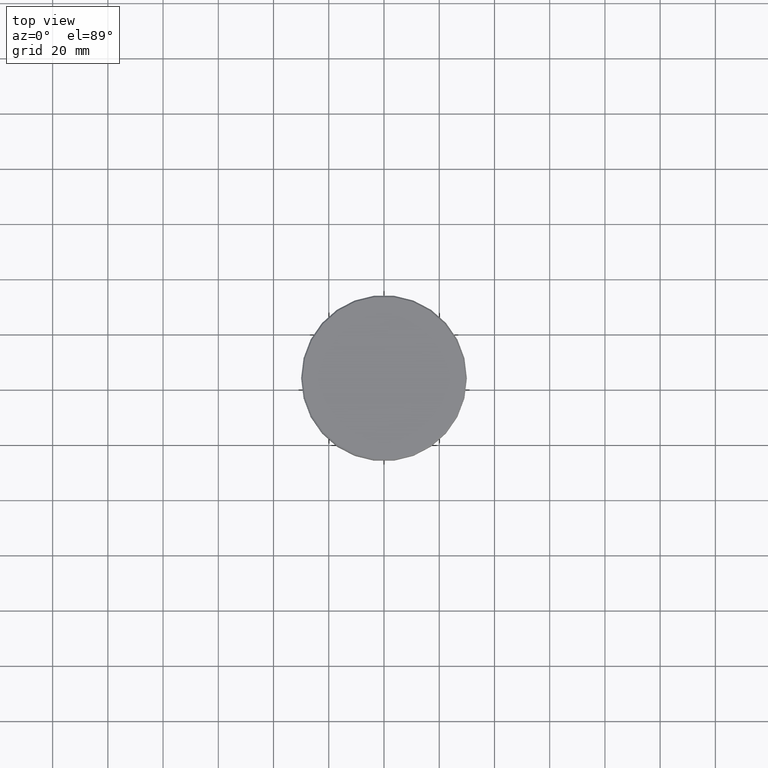
[diagram: clean part render]
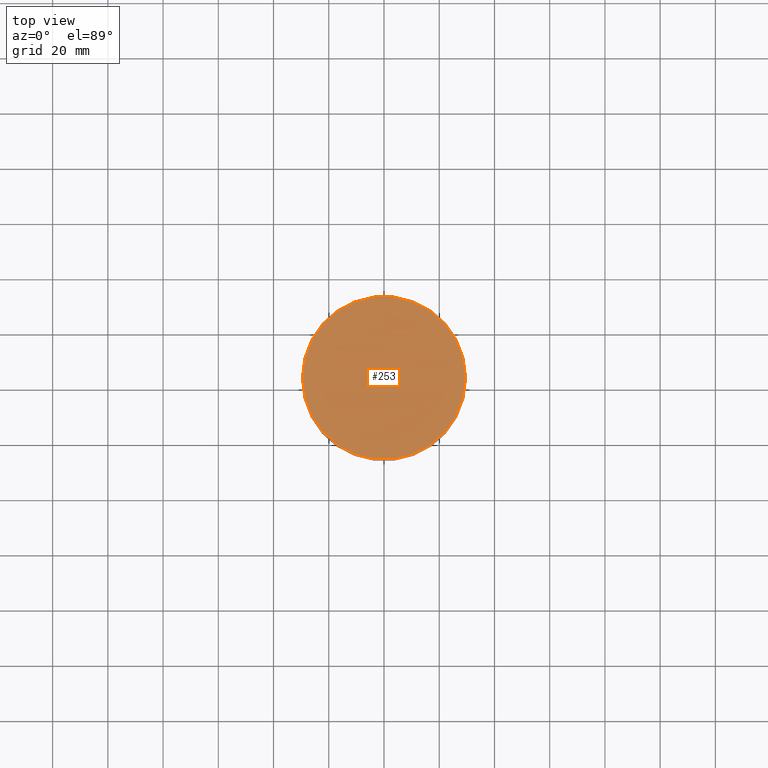
[diagram: same view with one face highlighted and labeled with its STEP entity id]
A machine part, top view. The second image highlights one B-rep face of the part: STEP entity #253.
In plain terms, the highlighted planar face has unit normal (0, -0, 1).
Its self-contained STEP definition (entity closure, byte-faithful):
#44 = DIRECTION ( 'NONE',  ( -0.000000000000000000, -0.000000000000000000, 1.000000000000000000 ) ) ;
#48 = CIRCLE ( 'NONE', #750, 29.50000000000000000 ) ;
#97 = FACE_OUTER_BOUND ( 'NONE', #459, .T. ) ;
#119 = AXIS2_PLACEMENT_3D ( 'NONE', #1006, #456, #1023 ) ;
#142 = ORIENTED_EDGE ( 'NONE', *, *, #875, .T. ) ;
#150 = CARTESIAN_POINT ( 'NONE',  ( -29.50000000000000000, 0.000000000000000000, 0.000000000000000000 ) ) ;
#166 = AXIS2_PLACEMENT_3D ( 'NONE', #626, #609, #352 ) ;
#197 = CIRCLE ( 'NONE', #166, 29.50000000000000000 ) ;
#253 = ADVANCED_FACE ( 'NONE', ( #97 ), #659, .T. ) ;
#268 = CARTESIAN_POINT ( 'NONE',  ( 29.50000000000000000, 3.643324227463375391E-15, 0.000000000000000000 ) ) ;
#352 = DIRECTION ( 'NONE',  ( 1.000000000000000000, 0.000000000000000000, 0.000000000000000000 ) ) ;
#402 = DIRECTION ( 'NONE',  ( 1.000000000000000000, 0.000000000000000000, 0.000000000000000000 ) ) ;
#456 = DIRECTION ( 'NONE',  ( 0.000000000000000000, -0.000000000000000000, 1.000000000000000000 ) ) ;
#459 = EDGE_LOOP ( 'NONE', ( #142, #1148 ) ) ;
#609 = DIRECTION ( 'NONE',  ( -0.000000000000000000, -0.000000000000000000, 1.000000000000000000 ) ) ;
#619 = VERTEX_POINT ( 'NONE', #268 ) ;
#626 = CARTESIAN_POINT ( 'NONE',  ( 0.000000000000000000, 0.000000000000000000, 0.000000000000000000 ) ) ;
#659 = PLANE ( 'NONE',  #119 ) ;
#750 = AXIS2_PLACEMENT_3D ( 'NONE', #862, #44, #402 ) ;
#843 = VERTEX_POINT ( 'NONE', #150 ) ;
#862 = CARTESIAN_POINT ( 'NONE',  ( 0.000000000000000000, 0.000000000000000000, 0.000000000000000000 ) ) ;
#875 = EDGE_CURVE ( 'NONE', #843, #619, #48, .T. ) ;
#984 = EDGE_CURVE ( 'NONE', #619, #843, #197, .T. ) ;
#1006 = CARTESIAN_POINT ( 'NONE',  ( 0.000000000000000000, 0.000000000000000000, 0.000000000000000000 ) ) ;
#1023 = DIRECTION ( 'NONE',  ( 1.000000000000000000, 0.000000000000000000, 0.000000000000000000 ) ) ;
#1148 = ORIENTED_EDGE ( 'NONE', *, *, #984, .T. ) ;